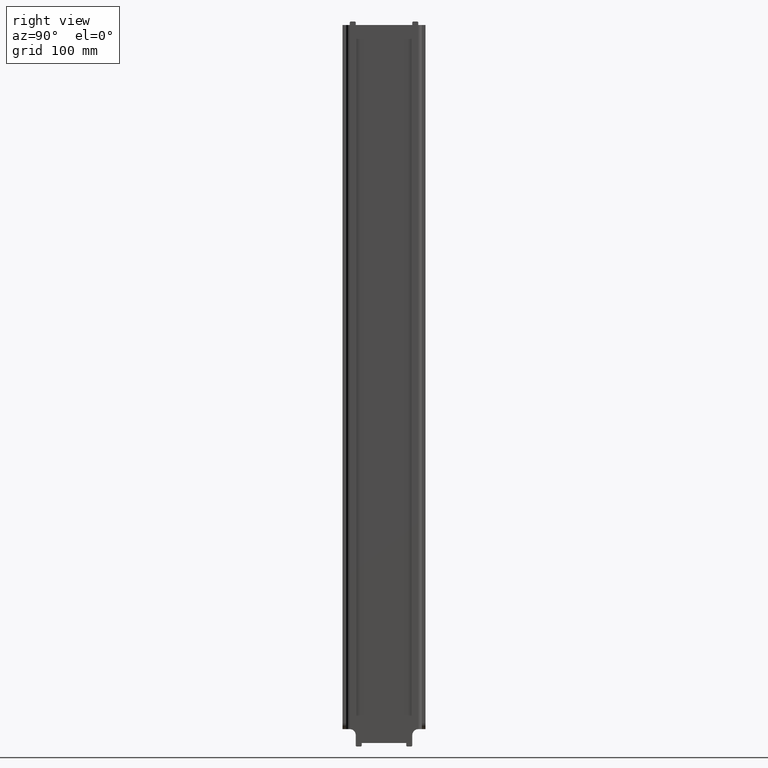
[diagram: clean part render]
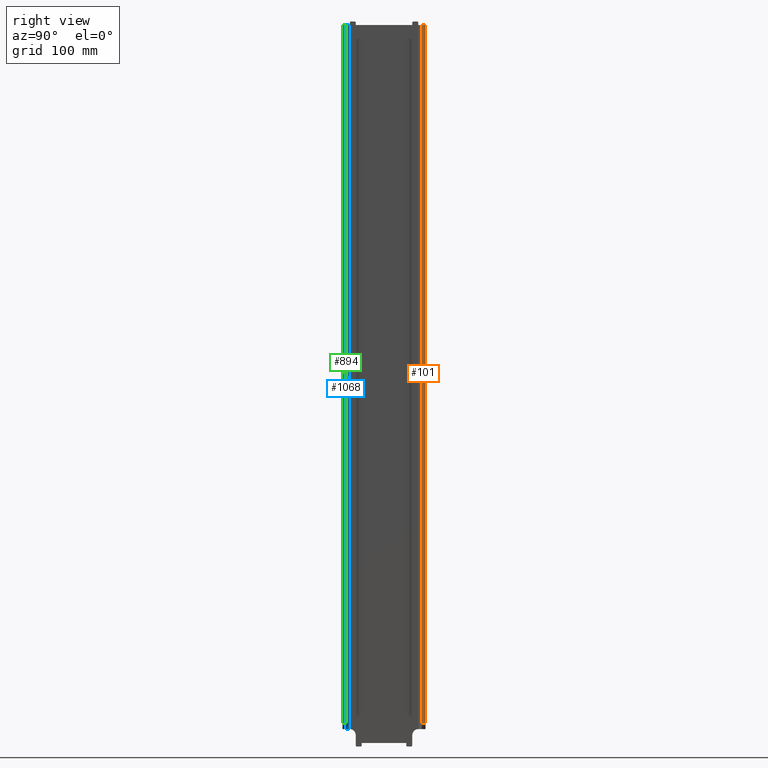
[diagram: same view with three faces highlighted in distinct colors, each labeled with its STEP entity id]
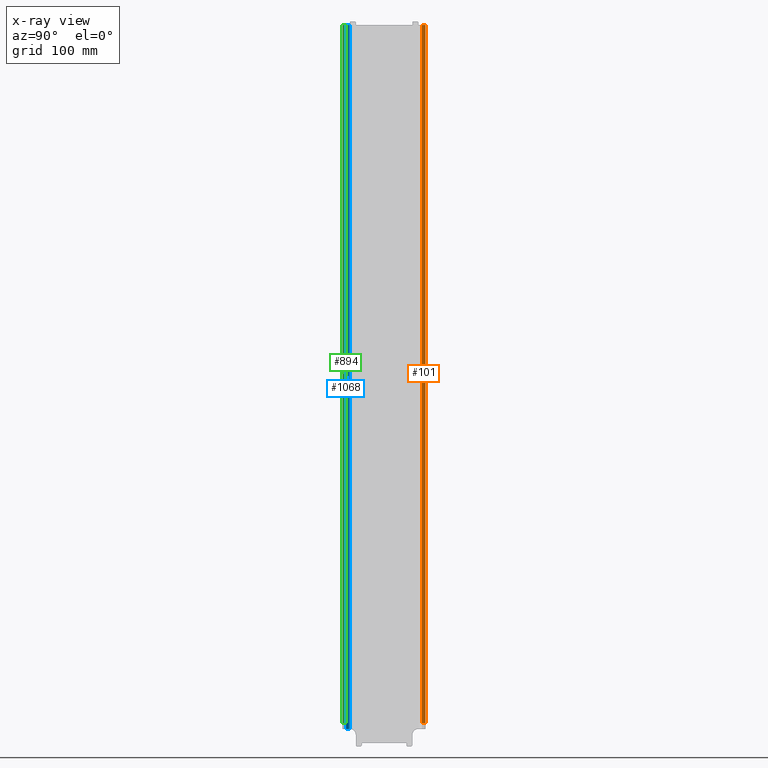
[diagram: x-ray of the same camera — body ghosted, the three highlighted faces saturated]
A machine part, right view with three faces highlighted in distinct colors.
The next image is the same camera in x-ray (body ghosted, the three faces saturated) — at least one of them is partly hidden behind the body in this view.
Their STEP definitions:

[orange] entity #101 — the highlighted planar face has unit normal (-1, 0, 0).
#53 = CARTESIAN_POINT ( 'NONE',  ( 349.9999999999996589, -1100.305262667903662, 44.50000000000054001 ) ) ;
#73 = LINE ( 'NONE', #741, #900 ) ;
#82 = EDGE_LOOP ( 'NONE', ( #501, #181, #991, #955 ) ) ;
#100 = CARTESIAN_POINT ( 'NONE',  ( 349.9999999999996589, -1097.305262667903889, 704.7558775263619282 ) ) ;
#101 = ADVANCED_FACE ( 'NONE', ( #237 ), #413, .F. ) ;
#127 = VECTOR ( 'NONE', #645, 1000.000000000000000 ) ;
#181 = ORIENTED_EDGE ( 'NONE', *, *, #941, .F. ) ;
#195 = DIRECTION ( 'NONE',  ( 0.000000000000000000, 0.000000000000000000, 1.000000000000000000 ) ) ;
#217 = DIRECTION ( 'NONE',  ( -0.000000000000000000, -0.000000000000000000, -1.000000000000000000 ) ) ;
#221 = EDGE_CURVE ( 'NONE', #1374, #1135, #1027, .T. ) ;
#227 = LINE ( 'NONE', #100, #368 ) ;
#237 = FACE_OUTER_BOUND ( 'NONE', #82, .T. ) ;
#290 = DIRECTION ( 'NONE',  ( -0.000000000000000000, -0.000000000000000000, -1.000000000000000000 ) ) ;
#291 = VERTEX_POINT ( 'NONE', #394 ) ;
#326 = EDGE_CURVE ( 'NONE', #619, #291, #1190, .T. ) ;
#331 = AXIS2_PLACEMENT_3D ( 'NONE', #748, #1020, #195 ) ;
#368 = VECTOR ( 'NONE', #217, 1000.000000000000000 ) ;
#394 = CARTESIAN_POINT ( 'NONE',  ( 349.9999999999996589, -1100.305262667903662, 625.0000000000001137 ) ) ;
#413 = PLANE ( 'NONE',  #331 ) ;
#501 = ORIENTED_EDGE ( 'NONE', *, *, #221, .F. ) ;
#526 = CARTESIAN_POINT ( 'NONE',  ( 349.9999999999996589, -1100.305262667903662, 625.0000000000001137 ) ) ;
#619 = VERTEX_POINT ( 'NONE', #803 ) ;
#645 = DIRECTION ( 'NONE',  ( -0.000000000000000000, -1.000000000000000000, -0.000000000000000000 ) ) ;
#741 = CARTESIAN_POINT ( 'NONE',  ( 349.9999999999996589, -1100.305262667903662, 704.7558775263619282 ) ) ;
#748 = CARTESIAN_POINT ( 'NONE',  ( 349.9999999999996589, -1100.305262667903662, 704.7558775263619282 ) ) ;
#803 = CARTESIAN_POINT ( 'NONE',  ( 349.9999999999996589, -1097.305262667903889, 625.0000000000001137 ) ) ;
#900 = VECTOR ( 'NONE', #290, 1000.000000000000000 ) ;
#908 = CARTESIAN_POINT ( 'NONE',  ( 349.9999999999996589, -1097.305262667903889, 44.50000000000054001 ) ) ;
#941 = EDGE_CURVE ( 'NONE', #619, #1374, #227, .T. ) ;
#955 = ORIENTED_EDGE ( 'NONE', *, *, #985, .T. ) ;
#985 = EDGE_CURVE ( 'NONE', #291, #1135, #73, .T. ) ;
#991 = ORIENTED_EDGE ( 'NONE', *, *, #326, .T. ) ;
#1012 = CARTESIAN_POINT ( 'NONE',  ( 349.9999999999996589, -1100.305262667903662, 44.50000000000054001 ) ) ;
#1020 = DIRECTION ( 'NONE',  ( -1.000000000000000000, 0.000000000000000000, 0.000000000000000000 ) ) ;
#1027 = LINE ( 'NONE', #53, #1178 ) ;
#1046 = DIRECTION ( 'NONE',  ( -0.000000000000000000, -1.000000000000000000, -0.000000000000000000 ) ) ;
#1135 = VERTEX_POINT ( 'NONE', #1012 ) ;
#1178 = VECTOR ( 'NONE', #1046, 1000.000000000000000 ) ;
#1190 = LINE ( 'NONE', #526, #127 ) ;
#1374 = VERTEX_POINT ( 'NONE', #908 ) ;

[blue] entity #1068 — the highlighted cylindrical surface (edge-blend (fillet) strip) has radius 3 mm, axis along (0, 0, 1).
#74 = VERTEX_POINT ( 'NONE', #346 ) ;
#83 = LINE ( 'NONE', #516, #250 ) ;
#86 = CARTESIAN_POINT ( 'NONE',  ( 312.9999999999995453, -1160.305262667903889, 704.7558775263619282 ) ) ;
#121 = DIRECTION ( 'NONE',  ( -1.000000000000000000, 0.000000000000000000, 0.000000000000000000 ) ) ;
#184 = DIRECTION ( 'NONE',  ( -0.000000000000000000, -0.000000000000000000, -1.000000000000000000 ) ) ;
#190 = CARTESIAN_POINT ( 'NONE',  ( 315.9999999999995453, -1160.305262667903889, 625.0000000000001137 ) ) ;
#210 = ORIENTED_EDGE ( 'NONE', *, *, #497, .F. ) ;
#250 = VECTOR ( 'NONE', #963, 1000.000000000000000 ) ;
#276 = EDGE_LOOP ( 'NONE', ( #999, #502, #1142, #210 ) ) ;
#295 = LINE ( 'NONE', #86, #335 ) ;
#296 = DIRECTION ( 'NONE',  ( -1.000000000000000000, 0.000000000000000000, 0.000000000000000000 ) ) ;
#297 = VERTEX_POINT ( 'NONE', #511 ) ;
#328 = CARTESIAN_POINT ( 'NONE',  ( 312.9999999999995453, -1160.305262667903889, 39.50000000000053291 ) ) ;
#335 = VECTOR ( 'NONE', #184, 1000.000000000000000 ) ;
#346 = CARTESIAN_POINT ( 'NONE',  ( 312.9999999999995453, -1160.305262667903889, 625.0000000000001137 ) ) ;
#352 = EDGE_CURVE ( 'NONE', #74, #937, #295, .T. ) ;
#497 = EDGE_CURVE ( 'NONE', #937, #628, #1413, .T. ) ;
#502 = ORIENTED_EDGE ( 'NONE', *, *, #745, .T. ) ;
#511 = CARTESIAN_POINT ( 'NONE',  ( 315.9999999999994884, -1163.305262667903662, 625.0000000000001137 ) ) ;
#516 = CARTESIAN_POINT ( 'NONE',  ( 315.9999999999993747, -1163.305262667903889, 704.7558775263619282 ) ) ;
#616 = CYLINDRICAL_SURFACE ( 'NONE', #974, 3.000000000000002665 ) ;
#628 = VERTEX_POINT ( 'NONE', #1051 ) ;
#633 = FACE_OUTER_BOUND ( 'NONE', #276, .T. ) ;
#732 = AXIS2_PLACEMENT_3D ( 'NONE', #874, #1125, #121 ) ;
#745 = EDGE_CURVE ( 'NONE', #74, #297, #1253, .T. ) ;
#799 = EDGE_CURVE ( 'NONE', #628, #297, #83, .T. ) ;
#843 = DIRECTION ( 'NONE',  ( 0.000000000000000000, 0.000000000000000000, 1.000000000000000000 ) ) ;
#860 = DIRECTION ( 'NONE',  ( -1.000000000000000000, 0.000000000000000000, 0.000000000000000000 ) ) ;
#874 = CARTESIAN_POINT ( 'NONE',  ( 315.9999999999995453, -1160.305262667903889, 39.50000000000053291 ) ) ;
#899 = AXIS2_PLACEMENT_3D ( 'NONE', #190, #843, #860 ) ;
#937 = VERTEX_POINT ( 'NONE', #328 ) ;
#963 = DIRECTION ( 'NONE',  ( 0.000000000000000000, 0.000000000000000000, 1.000000000000000000 ) ) ;
#974 = AXIS2_PLACEMENT_3D ( 'NONE', #1086, #1289, #296 ) ;
#999 = ORIENTED_EDGE ( 'NONE', *, *, #352, .F. ) ;
#1051 = CARTESIAN_POINT ( 'NONE',  ( 315.9999999999993747, -1163.305262667903889, 39.50000000000053291 ) ) ;
#1068 = ADVANCED_FACE ( 'NONE', ( #633 ), #616, .F. ) ;
#1086 = CARTESIAN_POINT ( 'NONE',  ( 315.9999999999995453, -1160.305262667903889, 704.7558775263619282 ) ) ;
#1125 = DIRECTION ( 'NONE',  ( 0.000000000000000000, 0.000000000000000000, 1.000000000000000000 ) ) ;
#1142 = ORIENTED_EDGE ( 'NONE', *, *, #799, .F. ) ;
#1253 = CIRCLE ( 'NONE', #899, 3.000000000000002665 ) ;
#1289 = DIRECTION ( 'NONE',  ( 0.000000000000000000, 0.000000000000000000, 1.000000000000000000 ) ) ;
#1413 = CIRCLE ( 'NONE', #732, 3.000000000000002665 ) ;

[green] entity #894 — the highlighted planar face has unit normal (-1, 0, 0).
#50 = EDGE_CURVE ( 'NONE', #1345, #1237, #530, .T. ) ;
#51 = VERTEX_POINT ( 'NONE', #232 ) ;
#106 = DIRECTION ( 'NONE',  ( -1.000000000000000000, 5.551115123125785858E-15, 0.000000000000000000 ) ) ;
#232 = CARTESIAN_POINT ( 'NONE',  ( 349.9999999999996589, -1163.305262667904117, 625.0000000000001137 ) ) ;
#316 = EDGE_CURVE ( 'NONE', #786, #51, #737, .T. ) ;
#320 = ORIENTED_EDGE ( 'NONE', *, *, #575, .T. ) ;
#353 = CARTESIAN_POINT ( 'NONE',  ( 349.9999999999996589, -1166.305262667904117, 44.50000000000054001 ) ) ;
#384 = ORIENTED_EDGE ( 'NONE', *, *, #50, .T. ) ;
#461 = AXIS2_PLACEMENT_3D ( 'NONE', #760, #106, #1103 ) ;
#524 = EDGE_LOOP ( 'NONE', ( #612, #320, #384, #1424 ) ) ;
#530 = LINE ( 'NONE', #888, #936 ) ;
#575 = EDGE_CURVE ( 'NONE', #786, #1345, #577, .T. ) ;
#577 = LINE ( 'NONE', #705, #1084 ) ;
#612 = ORIENTED_EDGE ( 'NONE', *, *, #316, .F. ) ;
#632 = DIRECTION ( 'NONE',  ( -0.000000000000000000, -0.000000000000000000, -1.000000000000000000 ) ) ;
#656 = PLANE ( 'NONE',  #461 ) ;
#660 = CARTESIAN_POINT ( 'NONE',  ( 349.9999999999996589, -1163.305262667904117, 44.50000000000054001 ) ) ;
#705 = CARTESIAN_POINT ( 'NONE',  ( 349.9999999999996589, -1166.305262667904117, 704.7558775263619282 ) ) ;
#737 = LINE ( 'NONE', #751, #938 ) ;
#751 = CARTESIAN_POINT ( 'NONE',  ( 349.9999999999996589, -1163.305262667904117, 625.0000000000001137 ) ) ;
#760 = CARTESIAN_POINT ( 'NONE',  ( 349.9999999999996589, -1163.305262667904117, 704.7558775263619282 ) ) ;
#786 = VERTEX_POINT ( 'NONE', #1410 ) ;
#888 = CARTESIAN_POINT ( 'NONE',  ( 349.9999999999996589, -1163.305262667904117, 44.50000000000054001 ) ) ;
#894 = ADVANCED_FACE ( 'NONE', ( #1230 ), #656, .F. ) ;
#936 = VECTOR ( 'NONE', #1314, 1000.000000000000000 ) ;
#938 = VECTOR ( 'NONE', #966, 1000.000000000000000 ) ;
#966 = DIRECTION ( 'NONE',  ( 5.551115123125785858E-15, 1.000000000000000000, 0.000000000000000000 ) ) ;
#1084 = VECTOR ( 'NONE', #1262, 1000.000000000000000 ) ;
#1094 = CARTESIAN_POINT ( 'NONE',  ( 349.9999999999996589, -1163.305262667904117, 704.7558775263619282 ) ) ;
#1103 = DIRECTION ( 'NONE',  ( 0.000000000000000000, 0.000000000000000000, 1.000000000000000000 ) ) ;
#1198 = LINE ( 'NONE', #1094, #1350 ) ;
#1230 = FACE_OUTER_BOUND ( 'NONE', #524, .T. ) ;
#1237 = VERTEX_POINT ( 'NONE', #660 ) ;
#1262 = DIRECTION ( 'NONE',  ( 0.000000000000000000, 0.000000000000000000, -1.000000000000000000 ) ) ;
#1314 = DIRECTION ( 'NONE',  ( 5.551115123125785858E-15, 1.000000000000000000, 0.000000000000000000 ) ) ;
#1345 = VERTEX_POINT ( 'NONE', #353 ) ;
#1350 = VECTOR ( 'NONE', #632, 1000.000000000000000 ) ;
#1410 = CARTESIAN_POINT ( 'NONE',  ( 349.9999999999996589, -1166.305262667904117, 625.0000000000001137 ) ) ;
#1417 = EDGE_CURVE ( 'NONE', #51, #1237, #1198, .T. ) ;
#1424 = ORIENTED_EDGE ( 'NONE', *, *, #1417, .F. ) ;